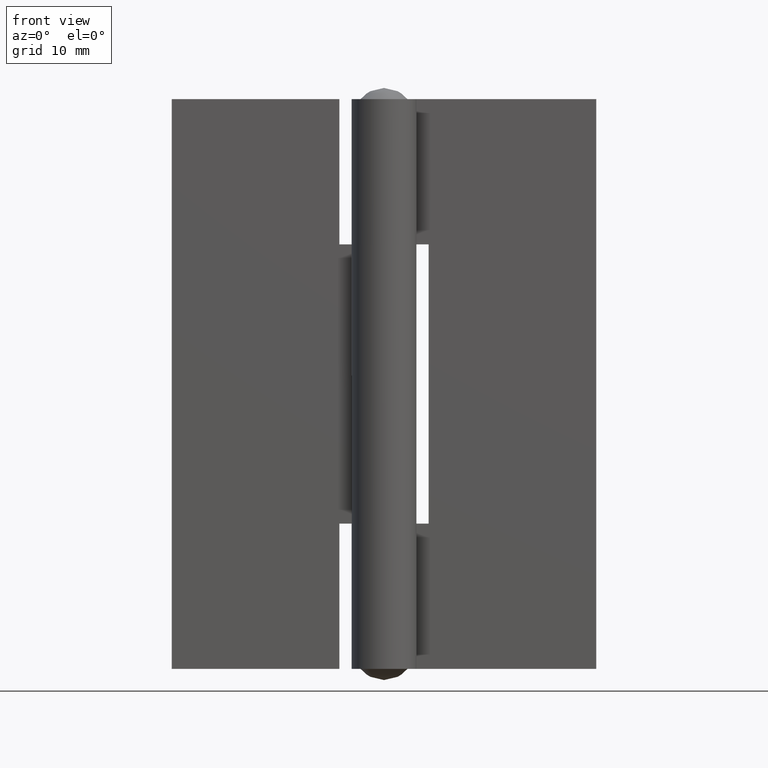
[diagram: clean part render]
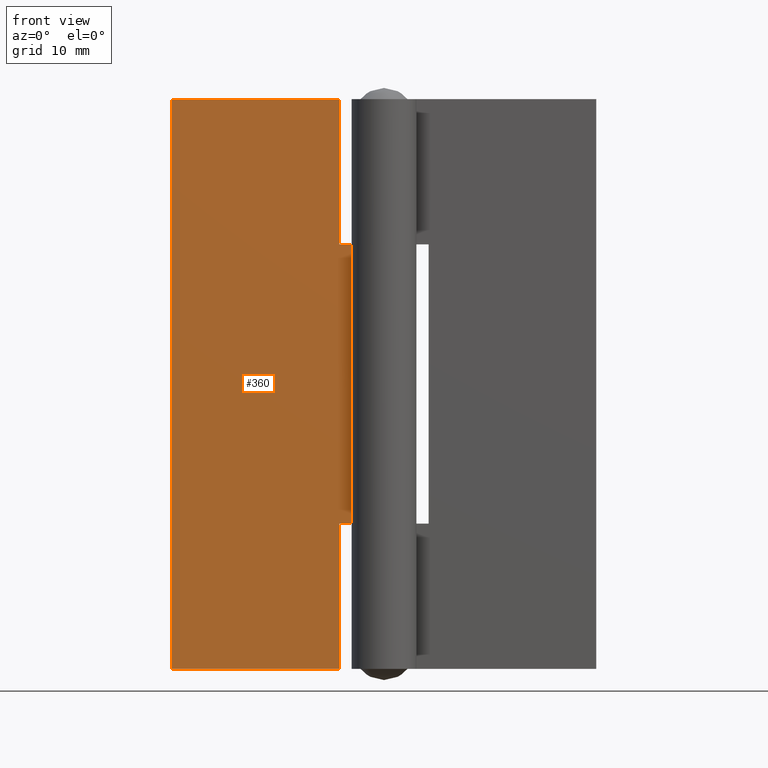
[diagram: same view with one face highlighted and labeled with its STEP entity id]
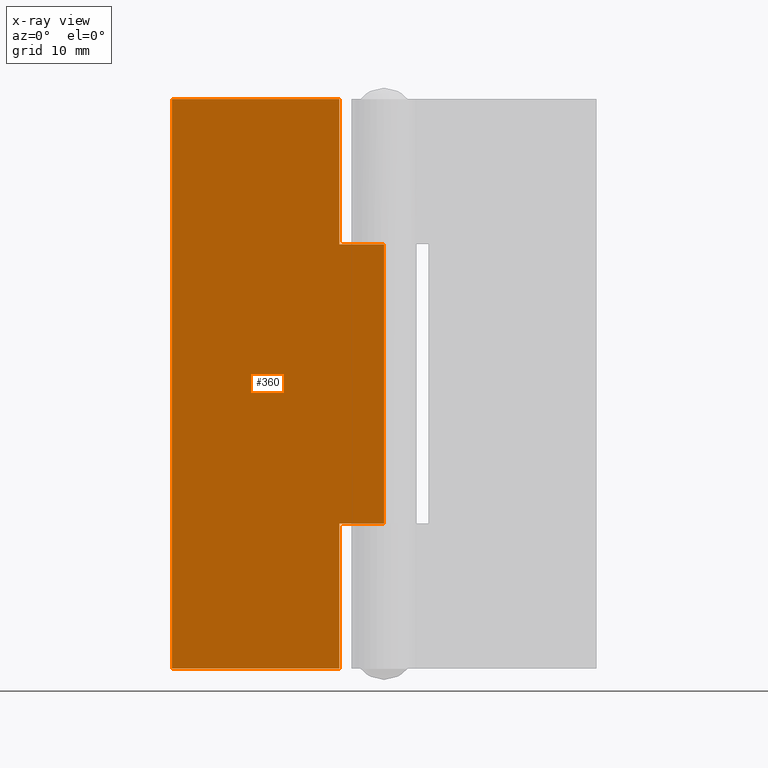
[diagram: x-ray of the same camera — body ghosted, the highlighted face saturated]
A machine part, front view. The second image highlights one B-rep face of the part: STEP entity #360.
The next image is the same camera in x-ray: the body ghosted, the highlighted face saturated — about 0% of this face is hidden behind the body in this view.
In plain terms, the highlighted face is a freeform B-spline surface patch.
Its self-contained STEP definition (entity closure, byte-faithful):
#19=CARTESIAN_POINT('',(-4.0,1.700002000000000,38.0));
#20=VERTEX_POINT('',#19);
#26=CARTESIAN_POINT('',(1.040924E-016,1.700002000000030,38.0));
#27=VERTEX_POINT('',#26);
#28=CARTESIAN_POINT('',(1.040924E-016,1.700002000000030,38.0));
#29=CARTESIAN_POINT('',(-4.0,1.700002000000000,38.0));
#30=QUASI_UNIFORM_CURVE('',1,(#28,#29),.UNSPECIFIED.,.F.,.U.);
#31=EDGE_CURVE('',#27,#20,#30,.T.);
#121=CARTESIAN_POINT('',(-4.0,1.700002000000000,51.0));
#122=VERTEX_POINT('',#121);
#128=CARTESIAN_POINT('',(-4.0,1.700002000000000,38.0));
#129=CARTESIAN_POINT('',(-4.0,1.700002000000000,51.0));
#130=QUASI_UNIFORM_CURVE('',1,(#128,#129),.UNSPECIFIED.,.F.,.U.);
#131=EDGE_CURVE('',#20,#122,#130,.T.);
#184=CARTESIAN_POINT('',(1.040924E-016,1.700002000000030,13.0));
#185=VERTEX_POINT('',#184);
#215=CARTESIAN_POINT('',(-4.0,1.700002000000000,13.0));
#216=VERTEX_POINT('',#215);
#217=CARTESIAN_POINT('',(1.040924E-016,1.700002000000030,13.0));
#218=CARTESIAN_POINT('',(-4.0,1.700002000000000,13.0));
#219=QUASI_UNIFORM_CURVE('',1,(#217,#218),.UNSPECIFIED.,.F.,.U.);
#220=EDGE_CURVE('',#185,#216,#219,.T.);
#242=CARTESIAN_POINT('',(-4.0,1.700002000000030,0.0));
#243=VERTEX_POINT('',#242);
#244=CARTESIAN_POINT('',(-4.0,1.700002000000000,13.0));
#245=CARTESIAN_POINT('',(-4.0,1.700002000000030,0.0));
#246=QUASI_UNIFORM_CURVE('',1,(#244,#245),.UNSPECIFIED.,.F.,.U.);
#247=EDGE_CURVE('',#216,#243,#246,.T.);
#271=CARTESIAN_POINT('',(-19.0,1.700002000000030,0.0));
#272=VERTEX_POINT('',#271);
#273=CARTESIAN_POINT('',(-4.0,1.700002000000030,0.0));
#274=CARTESIAN_POINT('',(-19.0,1.700002000000030,0.0));
#275=QUASI_UNIFORM_CURVE('',1,(#273,#274),.UNSPECIFIED.,.F.,.U.);
#276=EDGE_CURVE('',#243,#272,#275,.T.);
#299=CARTESIAN_POINT('',(-19.0,1.700002000000030,51.0));
#300=VERTEX_POINT('',#299);
#301=CARTESIAN_POINT('',(-19.0,1.700002000000030,51.0));
#302=CARTESIAN_POINT('',(-19.0,1.700002000000030,0.0));
#303=QUASI_UNIFORM_CURVE('',1,(#301,#302),.UNSPECIFIED.,.F.,.U.);
#304=EDGE_CURVE('',#300,#272,#303,.T.);
#333=CARTESIAN_POINT('',(-4.0,1.700002000000000,51.0));
#334=CARTESIAN_POINT('',(-19.0,1.700002000000030,51.0));
#335=QUASI_UNIFORM_CURVE('',1,(#333,#334),.UNSPECIFIED.,.F.,.U.);
#336=EDGE_CURVE('',#122,#300,#335,.T.);
#341=CARTESIAN_POINT('',(-19.949049963174311,1.700002000000030,53.547449901152113));
#342=CARTESIAN_POINT('',(-19.949049963174311,1.700002000000030,-2.547451269078700));
#343=CARTESIAN_POINT('',(0.949050472794025,1.700002000000030,53.547449901152113));
#344=CARTESIAN_POINT('',(0.949050472794025,1.700002000000030,-2.547451269078700));
#345=B_SPLINE_SURFACE_WITH_KNOTS('',1,1,((#341,#343),(#342,#344)),.UNSPECIFIED.,.F.,.F.,.U.,(2,2),(2,2),(0.0,56.094901170230813),(0.0,20.898100435968342),.UNSPECIFIED.);
#346=ORIENTED_EDGE('',*,*,#31,.T.);
#347=ORIENTED_EDGE('',*,*,#131,.T.);
#348=ORIENTED_EDGE('',*,*,#336,.T.);
#349=ORIENTED_EDGE('',*,*,#304,.T.);
#350=ORIENTED_EDGE('',*,*,#276,.F.);
#351=ORIENTED_EDGE('',*,*,#247,.F.);
#352=ORIENTED_EDGE('',*,*,#220,.F.);
#353=CARTESIAN_POINT('',(1.040924E-016,1.700002000000030,38.0));
#354=CARTESIAN_POINT('',(1.040924E-016,1.700002000000030,13.0));
#355=QUASI_UNIFORM_CURVE('',1,(#353,#354),.UNSPECIFIED.,.F.,.U.);
#356=EDGE_CURVE('',#27,#185,#355,.T.);
#357=ORIENTED_EDGE('',*,*,#356,.F.);
#358=EDGE_LOOP('',(#346,#347,#348,#349,#350,#351,#352,#357));
#359=FACE_OUTER_BOUND('',#358,.T.);
#360=ADVANCED_FACE('',(#359),#345,.T.);